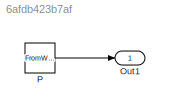
MODEL slx_6afdb423b7af
KIND model
CONFIG AbsTol = auto
CONFIG EnableMultiTasking = off
CONFIG FixedStep = auto
CONFIG MaxStep = auto
CONFIG MinStep = auto
CONFIG RelTol = 1e-3
CONFIG SampleTimeConstraint = Unconstrained
CONFIG Solver = FixedStepDiscrete
CONFIG SolverName = FixedStepDiscrete
CONFIG StartTime = 0.0
CONFIG StopTime = 10.0
WORKSPACE source: MAT-file member
WORKSPACE MCOS: class17 (value not decoded)
BLOCK [Outport] Out1
  IconDisplay = Port number
BLOCK [FromWorkspace] P
  Interpolate = off
  OutputAfterFinalValue = Setting to zero
  VariableName = X_timeseries
LINE P:1 -> Out1:1
